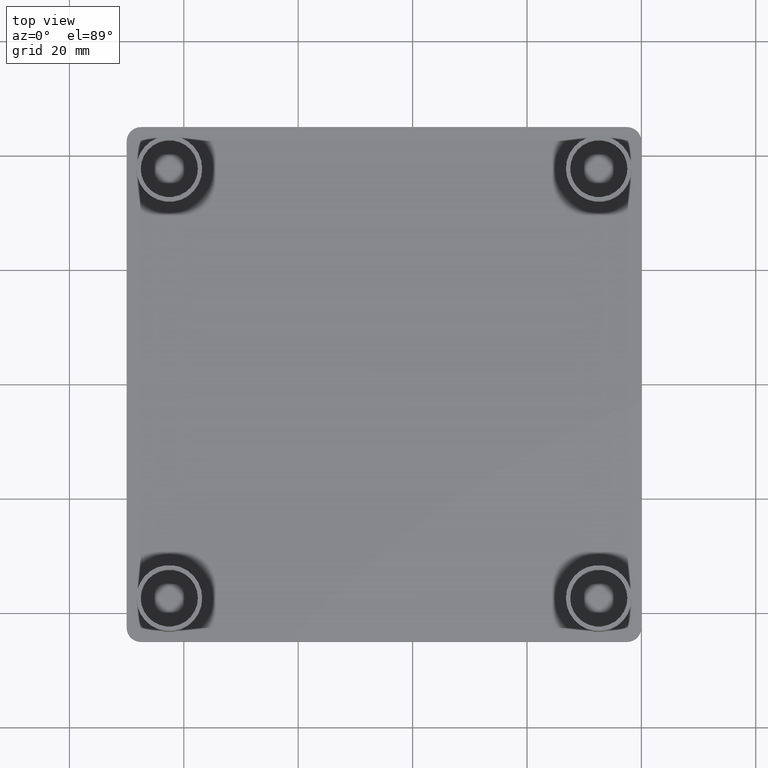
[diagram: clean part render]
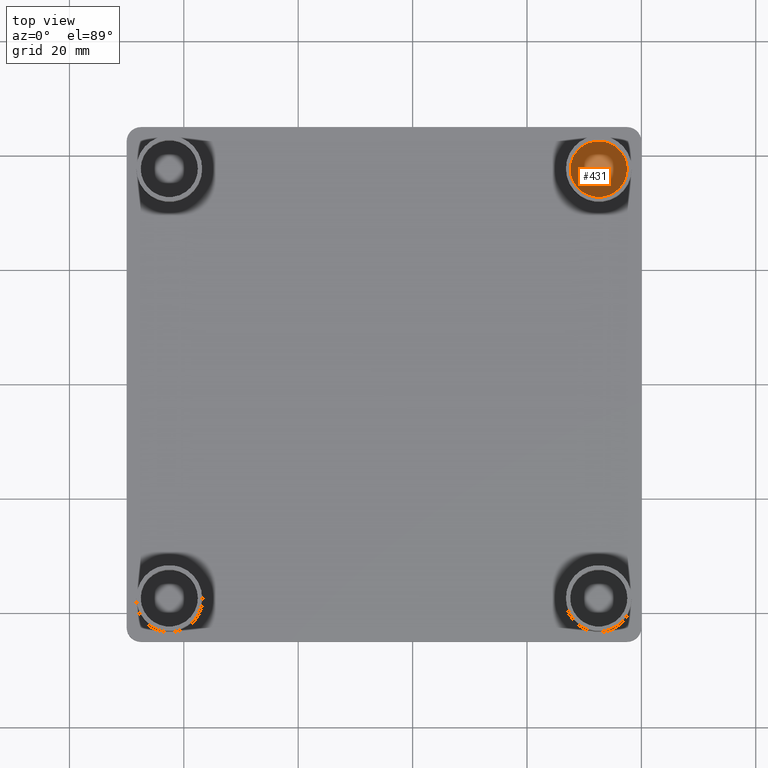
[diagram: same view with one face highlighted and labeled with its STEP entity id]
A machine part, top view. The second image highlights one B-rep face of the part: STEP entity #431.
In plain terms, the highlighted planar face has unit normal (0, 0, 1).
Its self-contained STEP definition (entity closure, byte-faithful):
#406=CARTESIAN_POINT('',(-98.999955232832463,-53.999977732792559,0.0));
#407=DIRECTION('',(0.0,0.0,1.0));
#408=DIRECTION('',(1.0,0.0,0.0));
#409=AXIS2_PLACEMENT_3D('',#406,#407,#408);
#410=PLANE('',#409);
#411=CARTESIAN_POINT('',(-12.449999999950034,37.550022499850002,0.0));
#412=VERTEX_POINT('',#411);
#413=CARTESIAN_POINT('',(-2.449999999990041,37.550022499850002,0.0));
#414=VERTEX_POINT('',#413);
#415=CARTESIAN_POINT('',(-7.449999999970032,37.550022499850002,0.0));
#416=DIRECTION('',(0.0,0.0,-1.0));
#417=DIRECTION('',(1.0,0.0,0.0));
#418=AXIS2_PLACEMENT_3D('',#415,#416,#417);
#419=CIRCLE('',#418,4.999999999980001);
#420=EDGE_CURVE('',#412,#414,#419,.T.);
#421=ORIENTED_EDGE('',*,*,#420,.F.);
#422=CARTESIAN_POINT('',(-7.449999999970032,37.550022499850002,0.0));
#423=DIRECTION('',(0.0,0.0,-1.0));
#424=DIRECTION('',(1.0,0.0,0.0));
#425=AXIS2_PLACEMENT_3D('',#422,#423,#424);
#426=CIRCLE('',#425,4.999999999980001);
#427=EDGE_CURVE('',#414,#412,#426,.T.);
#428=ORIENTED_EDGE('',*,*,#427,.F.);
#429=EDGE_LOOP('',(#421,#428));
#430=FACE_OUTER_BOUND('',#429,.T.);
#431=ADVANCED_FACE('',(#430),#410,.T.);